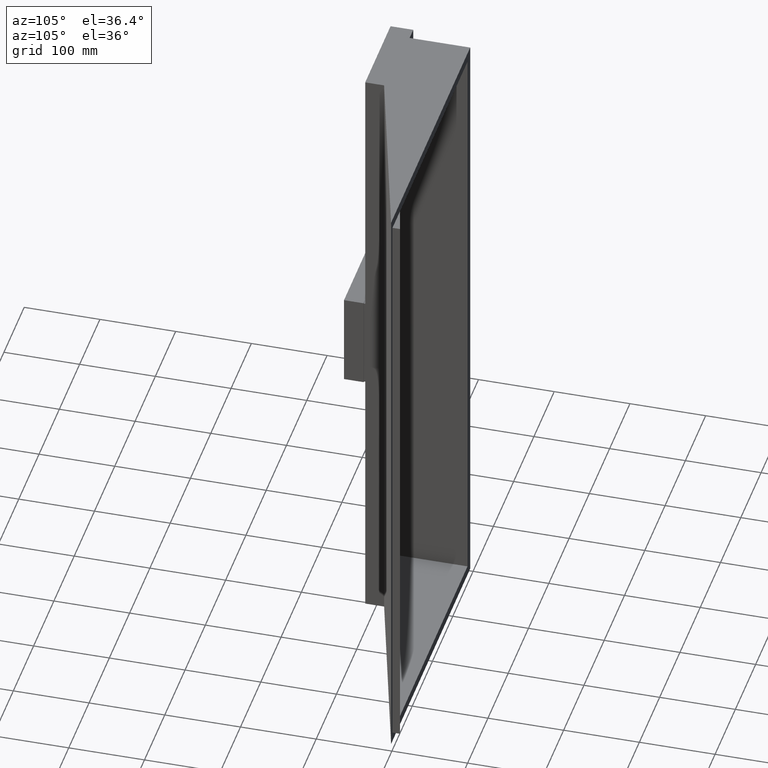
[diagram: clean part render]
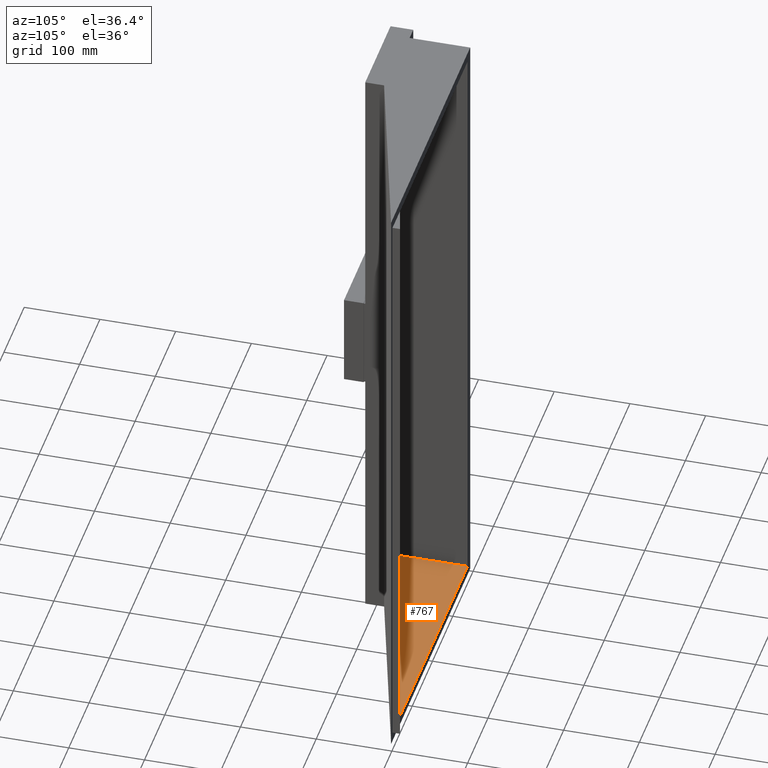
[diagram: same view with one face highlighted and labeled with its STEP entity id]
A machine part, auxiliary view. The second image highlights one B-rep face of the part: STEP entity #767.
In plain terms, the highlighted planar face has unit normal (0, 0, -1).
Its self-contained STEP definition (entity closure, byte-faithful):
#30 = ORIENTED_EDGE ( 'NONE', *, *, #1869, .T. ) ;
#90 = CARTESIAN_POINT ( 'NONE',  ( -68.11638246079654400, -90.00000000000000000, -399.9999999999999400 ) ) ;
#206 = VERTEX_POINT ( 'NONE', #2498 ) ;
#488 = LINE ( 'NONE', #90, #2869 ) ;
#498 = DIRECTION ( 'NONE',  ( 0.0000000000000000000, -1.000000000000000000, 0.0000000000000000000 ) ) ;
#510 = CARTESIAN_POINT ( 'NONE',  ( -68.11638246079637300, -93.50000000000000000, -399.9999999999999400 ) ) ;
#520 = LINE ( 'NONE', #2500, #595 ) ;
#556 = VECTOR ( 'NONE', #818, 1000.000000000000000 ) ;
#595 = VECTOR ( 'NONE', #2535, 1000.000000000000000 ) ;
#698 = EDGE_CURVE ( 'NONE', #1774, #2013, #2610, .T. ) ;
#741 = ORIENTED_EDGE ( 'NONE', *, *, #2081, .F. ) ;
#767 = ADVANCED_FACE ( 'NONE', ( #2156 ), #2722, .F. ) ;
#818 = DIRECTION ( 'NONE',  ( -1.000000000000000000, -0.0000000000000000000, -0.0000000000000000000 ) ) ;
#899 = CARTESIAN_POINT ( 'NONE',  ( 305.4194257289940400, -93.50000000000000000, -399.9999999999999400 ) ) ;
#1118 = LINE ( 'NONE', #899, #556 ) ;
#1135 = EDGE_CURVE ( 'NONE', #1655, #2013, #2634, .T. ) ;
#1140 = VECTOR ( 'NONE', #2029, 999.9999999999998900 ) ;
#1379 = CARTESIAN_POINT ( 'NONE',  ( -68.11638246079655800, -90.00000000000000000, -399.9999999999996600 ) ) ;
#1467 = ORIENTED_EDGE ( 'NONE', *, *, #1135, .T. ) ;
#1535 = CARTESIAN_POINT ( 'NONE',  ( -73.11638246079654400, 0.0000000000000000000, -399.9999999999999400 ) ) ;
#1655 = VERTEX_POINT ( 'NONE', #1379 ) ;
#1774 = VERTEX_POINT ( 'NONE', #1535 ) ;
#1855 = CARTESIAN_POINT ( 'NONE',  ( -86.11638246079655800, 0.0000000000000000000, -399.9999999999999400 ) ) ;
#1869 = EDGE_CURVE ( 'NONE', #1774, #206, #520, .T. ) ;
#1897 = CARTESIAN_POINT ( 'NONE',  ( 20.88361753920343500, 0.0000000000000000000, -399.9999999999999400 ) ) ;
#2013 = VERTEX_POINT ( 'NONE', #2148 ) ;
#2029 = DIRECTION ( 'NONE',  ( 0.9644582868368909400, 0.2642351470786004600, 0.0000000000000000000 ) ) ;
#2057 = DIRECTION ( 'NONE',  ( 1.000000000000000000, 0.0000000000000000000, 0.0000000000000000000 ) ) ;
#2081 = EDGE_CURVE ( 'NONE', #2245, #206, #1118, .T. ) ;
#2085 = DIRECTION ( 'NONE',  ( 0.0000000000000000000, 0.0000000000000000000, -1.000000000000000000 ) ) ;
#2119 = CARTESIAN_POINT ( 'NONE',  ( 296.8836175392034400, 10.00000000000000000, -399.9999999999999400 ) ) ;
#2148 = CARTESIAN_POINT ( 'NONE',  ( 260.3836175392035000, 0.0000000000000000000, -399.9999999999999400 ) ) ;
#2156 = FACE_OUTER_BOUND ( 'NONE', #2354, .T. ) ;
#2202 = AXIS2_PLACEMENT_3D ( 'NONE', #1897, #2085, #2668 ) ;
#2245 = VERTEX_POINT ( 'NONE', #510 ) ;
#2354 = EDGE_LOOP ( 'NONE', ( #30, #741, #2671, #1467, #2701 ) ) ;
#2454 = EDGE_CURVE ( 'NONE', #1655, #2245, #488, .T. ) ;
#2498 = CARTESIAN_POINT ( 'NONE',  ( -73.11638246079655800, -93.50000000000000000, -399.9999999999999400 ) ) ;
#2500 = CARTESIAN_POINT ( 'NONE',  ( -73.11638246079654400, 9.999999999999955600, -399.9999999999999400 ) ) ;
#2535 = DIRECTION ( 'NONE',  ( -1.387778780781446400E-016, -1.000000000000000000, 0.0000000000000000000 ) ) ;
#2579 = VECTOR ( 'NONE', #2057, 1000.000000000000000 ) ;
#2610 = LINE ( 'NONE', #1855, #2579 ) ;
#2634 = LINE ( 'NONE', #2119, #1140 ) ;
#2668 = DIRECTION ( 'NONE',  ( -1.000000000000000000, 0.0000000000000000000, -0.0000000000000000000 ) ) ;
#2671 = ORIENTED_EDGE ( 'NONE', *, *, #2454, .F. ) ;
#2701 = ORIENTED_EDGE ( 'NONE', *, *, #698, .F. ) ;
#2722 = PLANE ( 'NONE',  #2202 ) ;
#2869 = VECTOR ( 'NONE', #498, 1000.000000000000000 ) ;